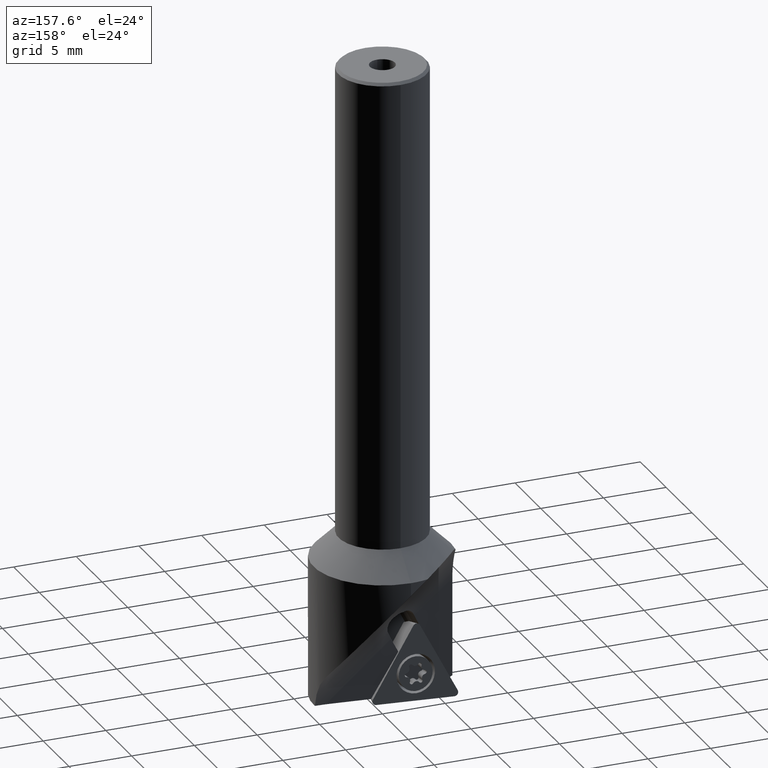
[diagram: clean part render]
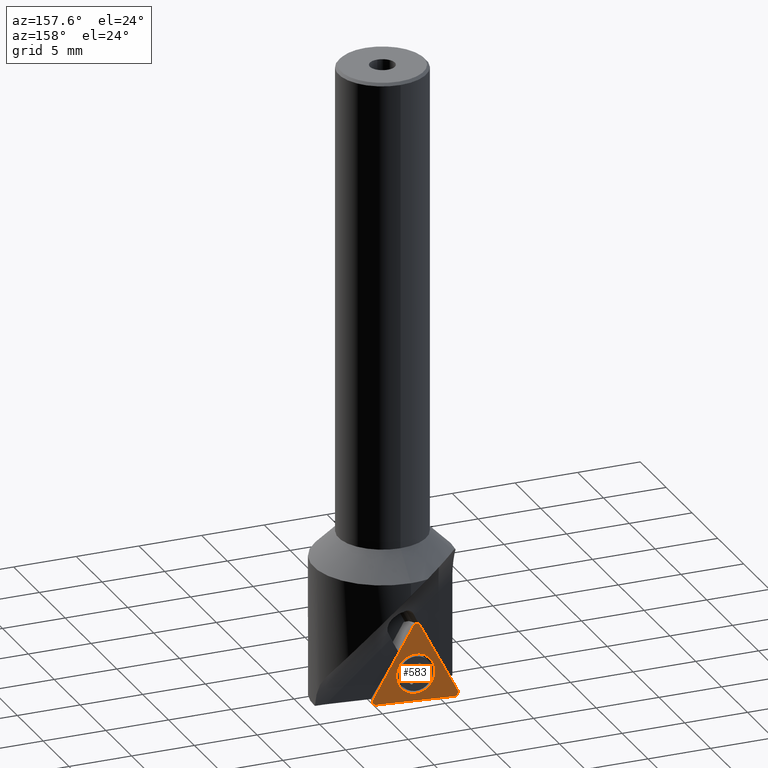
[diagram: same view with one face highlighted and labeled with its STEP entity id]
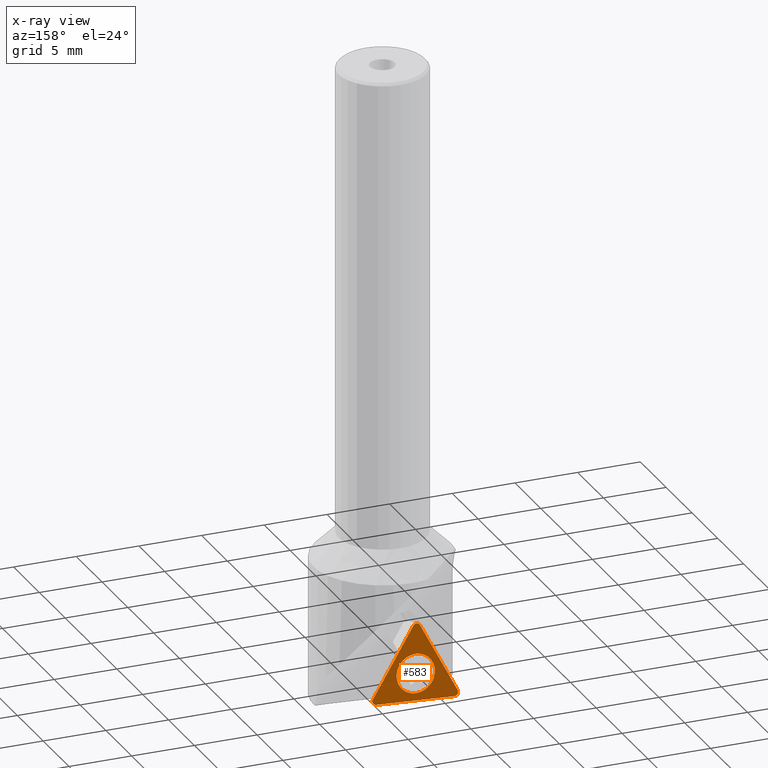
[diagram: x-ray of the same camera — body ghosted, the highlighted face saturated]
A machine part, auxiliary view. The second image highlights one B-rep face of the part: STEP entity #583.
The next image is the same camera in x-ray: the body ghosted, the highlighted face saturated — about 0% of this face is hidden behind the body in this view.
In plain terms, the highlighted planar face has unit normal (-0, -0.9962, -0.0872).
Its self-contained STEP definition (entity closure, byte-faithful):
#553=VERTEX_POINT('NONE',#1586);
#579=EDGE_CURVE('NONE',#731,#1285,#1615,.T.);
#583=ADVANCED_FACE('NONE',(#1619,#1620),#1621,.F.);
#597=EDGE_CURVE('NONE',#737,#625,#1636,.T.);
#625=VERTEX_POINT('NONE',#1667);
#663=VERTEX_POINT('',#1707);
#697=EDGE_CURVE('NONE',#1285,#737,#1745,.T.);
#713=EDGE_CURVE('NONE',#553,#813,#1762,.T.);
#729=VERTEX_POINT('NONE',#1779);
#731=VERTEX_POINT('NONE',#1781);
#737=VERTEX_POINT('NONE',#1788);
#813=VERTEX_POINT('NONE',#1877);
#839=EDGE_CURVE('NONE',#813,#553,#1905,.T.);
#1015=VERTEX_POINT('NONE',#2102);
#1073=EDGE_CURVE('NONE',#625,#1207,#2167,.T.);
#1205=EDGE_CURVE('NONE',#729,#731,#2310,.T.);
#1207=VERTEX_POINT('NONE',#2312);
#1285=VERTEX_POINT('NONE',#2396);
#1347=EDGE_CURVE('NONE',#1207,#663,#2466,.T.);
#1361=EDGE_CURVE('NONE',#663,#1015,#2481,.T.);
#1381=EDGE_CURVE('NONE',#1015,#729,#2503,.T.);
#1586=CARTESIAN_POINT('',(-1.73901726403483,0.433309903761746,-13.3823243304758));
#1615=LINE('',#2761,#2762);
#1619=FACE_OUTER_BOUND('',#2766,.T.);
#1620=FACE_BOUND('',#2767,.T.);
#1621=PLANE('',#2768);
#1636=CIRCLE('',#2805,0.3);
#1667=CARTESIAN_POINT('',(-5.71559404387746,0.712149386248501,-16.5694741993743));
#1707=CARTESIAN_POINT('',(-2.49266963363984,0.215943122983367,-10.897810657296));
#1745=CIRCLE('',#3004,0.3);
#1762=CIRCLE('',#3030,1.53406505653397);
#1779=CARTESIAN_POINT('',(1.02942612422184,0.680161574413993,-16.203851837055));
#1781=CARTESIAN_POINT('',(0.79445209934497,0.720554026110945,-16.6655396725879));
#1788=CARTESIAN_POINT('',(-5.58368256519271,0.747293729067718,-16.9711758759441));
#1877=CARTESIAN_POINT('',(-3.12644939239794,0.671811947794372,-16.1084151680842));
#1905=CIRCLE('',#3238,1.53406505653397);
#2102=CARTESIAN_POINT('',(-2.37705804011665,0.224979364974732,-11.0010953758777));
#2167=LINE('',#3648,#3649);
#2310=CIRCLE('',#3898,0.3);
#2312=CARTESIAN_POINT('',(-2.89590574535505,0.227439965885079,-11.0292201729792));
#2396=CARTESIAN_POINT('',(-5.43172036351592,0.750081237035106,-17.0030372378057));
#2466=CIRCLE('',#4157,0.3);
#2481=CIRCLE('',#4186,0.3);
#2503=LINE('',#4218,#4219);
#2761=CARTESIAN_POINT('',(-5.43172036351592,0.750081237035106,-17.0030372378057));
#2762=VECTOR('',#4556,1000.0);
#2766=EDGE_LOOP('',(#4558,#4559,#4560,#4561,#4562,#4563,#4564,#4565));
#2767=EDGE_LOOP('',(#4566,#4567));
#2768=AXIS2_PLACEMENT_3D('',#4568,#4569,#4570);
#2805=AXIS2_PLACEMENT_3D('',#4585,#4586,#4587);
#3004=AXIS2_PLACEMENT_3D('',#4700,#4701,#4702);
#3030=AXIS2_PLACEMENT_3D('',#4720,#4721,#4722);
#3238=AXIS2_PLACEMENT_3D('',#4927,#4928,#4929);
#3648=CARTESIAN_POINT('',(-5.71559404387746,0.712149386248501,-16.5694741993743));
#3649=VECTOR('',#5275,1000.0);
#3898=AXIS2_PLACEMENT_3D('',#5413,#5414,#5415);
#4157=AXIS2_PLACEMENT_3D('',#5593,#5594,#5595);
#4186=AXIS2_PLACEMENT_3D('',#5610,#5611,#5612);
#4218=CARTESIAN_POINT('',(1.02942612422184,0.680161574413993,-16.203851837055));
#4219=VECTOR('',#5634,1000.0);
#4556=DIRECTION('',(-0.998522874292712,0.0047354286598565,-0.0541261972581545));
#4558=ORIENTED_EDGE('',*,*,#697,.T.);
#4559=ORIENTED_EDGE('',*,*,#597,.T.);
#4560=ORIENTED_EDGE('',*,*,#1073,.T.);
#4561=ORIENTED_EDGE('',*,*,#1347,.T.);
#4562=ORIENTED_EDGE('',*,*,#1361,.T.);
#4563=ORIENTED_EDGE('',*,*,#1381,.T.);
#4564=ORIENTED_EDGE('',*,*,#1205,.T.);
#4565=ORIENTED_EDGE('',*,*,#579,.T.);
#4566=ORIENTED_EDGE('',*,*,#713,.T.);
#4567=ORIENTED_EDGE('',*,*,#839,.T.);
#4568=CARTESIAN_POINT('',(-5.44802024867748,0.723973136207254,-16.7046202798176));
#4569=DIRECTION('',(-2.08166817117217E-017,-0.996194698091746,-0.0871557427476583));
#4570=DIRECTION('',(-0.891912650666605,-0.0394124998625091,0.450486934811053));
#4585=CARTESIAN_POINT('',(-5.44802024867748,0.723973136207254,-16.7046202798176));
#4586=DIRECTION('',(2.40933816107889E-017,0.996194698091746,0.0871557427476583));
#4587=DIRECTION('',(-0.452207721717432,0.0777353095348807,-0.888518653755027));
#4700=CARTESIAN_POINT('',(-5.44802024867748,0.723973136207254,-16.7046202798176));
#4701=DIRECTION('',(2.40933816107889E-017,0.996194698091746,0.0871557427476583));
#4702=DIRECTION('',(-0.452207721717432,0.0777353095348807,-0.888518653755027));
#4720=CARTESIAN_POINT('',(-2.43273332821639,0.552560925778059,-14.74536974928));
#4721=DIRECTION('',(-2.35880847271936E-017,-0.996194698091746,-0.0871557427476583));
#4722=DIRECTION('',(-0.452207721717432,0.0777353095348807,-0.888518653755027));
#4927=CARTESIAN_POINT('',(-2.43273332821639,0.552560925778059,-14.74536974928));
#4928=DIRECTION('',(-2.35880847271936E-017,-0.996194698091746,-0.0871557427476583));
#4929=DIRECTION('',(-0.452207721717432,0.0777353095348807,-0.888518653755027));
#5275=DIRECTION('',(0.452207721717432,-0.0777353095348807,0.888518653755027));
#5413=CARTESIAN_POINT('',(0.778152214183413,0.694445925283093,-16.3671227145998));
#5414=DIRECTION('',(1.92747052886312E-017,0.996194698091746,0.0871557427476583));
#5415=DIRECTION('',(-0.452207721717432,0.0777353095348807,-0.888518653755027));
#5593=CARTESIAN_POINT('',(-2.62833195015507,0.239263715843832,-11.1643662534225));
#5594=DIRECTION('',(2.40933816107889E-017,0.996194698091746,0.0871557427476583));
#5595=DIRECTION('',(-0.452207721717432,0.0777353095348807,-0.888518653755027));
#5610=CARTESIAN_POINT('',(-2.62833195015507,0.239263715843832,-11.1643662534225));
#5611=DIRECTION('',(2.40933816107889E-017,0.996194698091746,0.0871557427476583));
#5612=DIRECTION('',(-0.452207721717432,0.0777353095348807,-0.888518653755027));
#5634=DIRECTION('',(0.546315152575283,0.0729998808750237,-0.834392456496868));